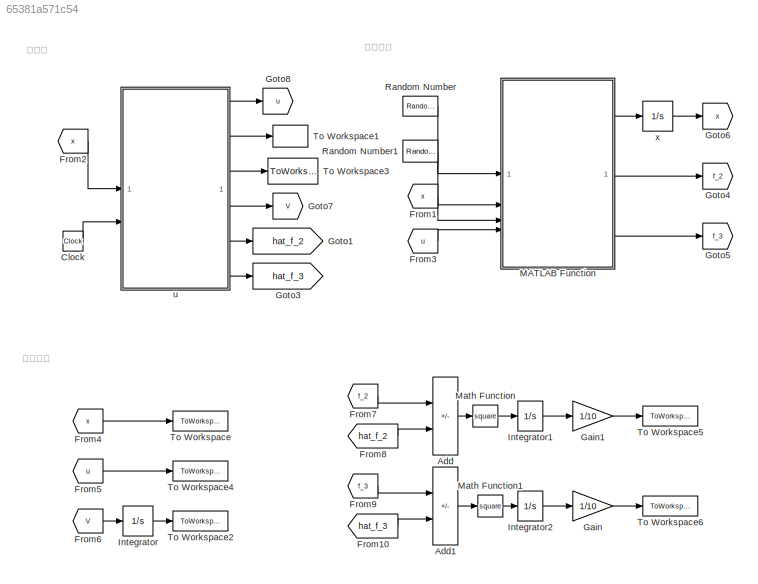
MODEL slx_65381a571c54
KIND model
CONFIG AbsTol = auto
CONFIG EnableMultiTasking = off
CONFIG FixedStep = Step_T
CONFIG MaxStep = auto
CONFIG MinStep = auto
CONFIG RelTol = 1e-3
CONFIG SampleTimeConstraint = Unconstrained
CONFIG SolverName = FixedStepAuto
CONFIG StartTime = 0.0
CONFIG StopTime = 10
BLOCK [Sum] Add
  IconShape = rectangular
  Inputs = +-
BLOCK [Sum] Add1
  IconShape = rectangular
  Inputs = +-
BLOCK [Clock] Clock
BLOCK [From] From1
  GotoTag = x
  NameLocation = top
BLOCK [From] From10
  GotoTag = hat_f_3
  NameLocation = top
BLOCK [From] From2
  GotoTag = x
  NameLocation = top
BLOCK [From] From3
  GotoTag = u
  NameLocation = top
BLOCK [From] From4
  GotoTag = x
  NameLocation = top
BLOCK [From] From5
  GotoTag = u
  NameLocation = top
BLOCK [From] From6
  GotoTag = V
  NameLocation = top
BLOCK [From] From7
  GotoTag = f_2
  NameLocation = top
BLOCK [From] From8
  GotoTag = hat_f_2
  NameLocation = top
BLOCK [From] From9
  GotoTag = f_3
  NameLocation = top
BLOCK [Gain] Gain
  Gain = 1/10
BLOCK [Gain] Gain1
  Gain = 1/10
BLOCK [Goto] Goto1
  GotoTag = hat_f_2
BLOCK [Goto] Goto3
  GotoTag = hat_f_3
BLOCK [Goto] Goto4
  GotoTag = f_2
BLOCK [Goto] Goto5
  GotoTag = f_3
BLOCK [Goto] Goto6
  GotoTag = x
BLOCK [Goto] Goto7
  GotoTag = V
BLOCK [Goto] Goto8
  GotoTag = u
BLOCK [Integrator] Integrator
BLOCK [Integrator] Integrator1
BLOCK [Integrator] Integrator2
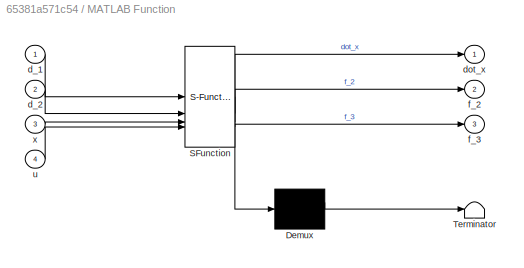
BLOCK [SubSystem] MATLAB Function
  ErrorFcn = Stateflow.Translate.translate
  PermitHierarchicalResolution = ExplicitOnly
  SFBlockType = MATLAB Function
  TreatAsAtomicUnit = on
BLOCK [Demux] MATLAB Function/ Demux 
  Outputs = 1
BLOCK [S-Function] MATLAB Function/ SFunction 
  EnableBusSupport = on
  FunctionName = sf_sfun
  Parameters = pam
  PortCounts = [4 4]
  SFcnIsStateOwnerBlock = off
  SFunctionDeploymentMode = off
  Tag = Stateflow S-Function 2
BLOCK [Terminator] MATLAB Function/ Terminator 
BLOCK [Inport] MATLAB Function/d_1
BLOCK [Inport] MATLAB Function/d_2
  Port = 2
BLOCK [Outport] MATLAB Function/dot_x
BLOCK [Outport] MATLAB Function/f_2
  Port = 2
BLOCK [Outport] MATLAB Function/f_3
  Port = 3
BLOCK [Inport] MATLAB Function/u
  Port = 4
BLOCK [Inport] MATLAB Function/x
  Port = 3
BLOCK [Math] Math Function
  Operator = square
BLOCK [Math] Math Function1
  Operator = square
BLOCK [RandomNumber] Random Number
  SampleTime = Step_T
  Seed = -1
  Variance = pam.d*pam.d
BLOCK [RandomNumber] Random Number1
  SampleTime = Step_T
  Seed = 1
  Variance = pam.d*pam.d
BLOCK [ToWorkspace] To Workspace
  FixptAsFi = on
  MaxDataPoints = inf
  SampleTime = -1
  SaveFormat = Timeseries
  VariableName = x
BLOCK [ToWorkspace] To Workspace1
  FixptAsFi = on
  MaxDataPoints = inf
  SampleTime = -1
  SaveFormat = Timeseries
  VariableName = e
BLOCK [ToWorkspace] To Workspace2
  FixptAsFi = on
  MaxDataPoints = inf
  SampleTime = -1
  SaveFormat = Timeseries
  VariableName = IAC
BLOCK [ToWorkspace] To Workspace3
  FixptAsFi = on
  MaxDataPoints = inf
  SampleTime = -1
  SaveFormat = Timeseries
  VariableName = y_d
BLOCK [ToWorkspace] To Workspace4
  FixptAsFi = on
  MaxDataPoints = inf
  SampleTime = -1
  SaveFormat = Timeseries
  VariableName = u
BLOCK [ToWorkspace] To Workspace5
  FixptAsFi = on
  MaxDataPoints = inf
  SampleTime = -1
  SaveFormat = Timeseries
  VariableName = error_2
BLOCK [ToWorkspace] To Workspace6
  FixptAsFi = on
  MaxDataPoints = inf
  SampleTime = -1
  SaveFormat = Timeseries
  VariableName = error_3
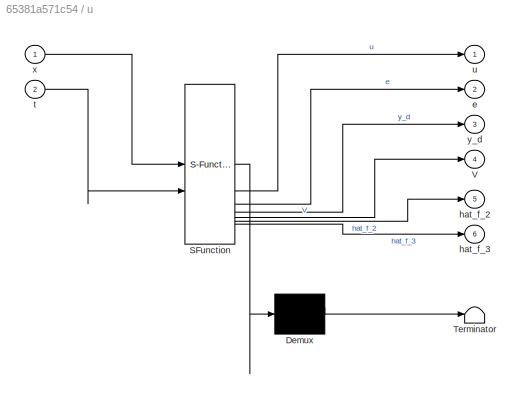
BLOCK [SubSystem] u
  ErrorFcn = Stateflow.Translate.translate
  PermitHierarchicalResolution = ExplicitOnly
  SFBlockType = MATLAB Function
  TreatAsAtomicUnit = on
BLOCK [Demux] u/ Demux 
  Outputs = 1
BLOCK [S-Function] u/ SFunction 
  EnableBusSupport = on
  FunctionName = sf_sfun
  Parameters = pam
  PortCounts = [2 7]
  SFcnIsStateOwnerBlock = off
  SFunctionDeploymentMode = off
  Tag = Stateflow S-Function 1
BLOCK [Terminator] u/ Terminator 
BLOCK [Outport] u/V
  Port = 4
BLOCK [Outport] u/e
  Port = 2
BLOCK [Outport] u/hat_f_2
  Port = 5
BLOCK [Outport] u/hat_f_3
  Port = 6
BLOCK [Inport] u/t
  Port = 2
BLOCK [Outport] u/u
BLOCK [Inport] u/x
BLOCK [Outport] u/y_d
  Port = 3
BLOCK [Integrator] x
  InitialCondition = [x_1_0;x_2_0;x_3_0]
ANNOTATION (root): 控制器
ANNOTATION (root): 画图数据
ANNOTATION (root): 系统模型
LINE Add1:1 -> Math Function1:1
LINE Add:1 -> Math Function:1
LINE Clock:1 -> u:2
LINE From10:1 -> Add1:2
LINE From1:1 -> MATLAB Function:3
LINE From2:1 -> u:1
LINE From3:1 -> MATLAB Function:4
LINE From4:1 -> To Workspace:1
LINE From5:1 -> To Workspace4:1
LINE From6:1 -> Integrator:1
LINE From7:1 -> Add:1
LINE From8:1 -> Add:2
LINE From9:1 -> Add1:1
LINE Gain1:1 -> To Workspace5:1
LINE Gain:1 -> To Workspace6:1
LINE Integrator1:1 -> Gain1:1
LINE Integrator2:1 -> Gain:1
LINE Integrator:1 -> To Workspace2:1
LINE MATLAB Function:1 -> x:1
LINE MATLAB Function:2 -> Goto4:1
LINE MATLAB Function:3 -> Goto5:1
LINE Math Function1:1 -> Integrator2:1
LINE Math Function:1 -> Integrator1:1
LINE Random Number1:1 -> MATLAB Function:2
LINE Random Number:1 -> MATLAB Function:1
LINE u:1 -> Goto8:1
LINE u:2 -> To Workspace1:1
LINE u:3 -> To Workspace3:1
LINE u:4 -> Goto7:1
LINE u:5 -> Goto1:1
LINE u:6 -> Goto3:1
LINE x:1 -> Goto6:1
CHART u states=1 transitions=1
  STATE_LABEL 'eML_blk_kernel()'
  STATE_LABEL "SCRIPT:\nfunction [u,e,y_d,V,hat_f_2,hat_f_3]  = fcn(x,t,pam)\n\ny_d = sin(t);\ndot_y_d = cos(t);\nddot_y_d = -sin(t);\ndddot_y_d = -cos(t);\n\nx_1 = x(1);\nx_2 = x(2);\nx_3 = x(3);\n\nz_2 = [sin(x_1);x_2];\nz_3 = [x_2;x_3];\n\ndot_x_1 = x_2;\ndot_x_2 = x_3+pam.hat_theta_2'*z_2;\n\n\npdot_alpha_2_x_1 = pam.hat_theta_2'*[cos(x_1);0]; \npdot_alpha_2_x_2 = pam.hat_theta_2'*[0;1];\n\npdot_alpha_2_e_1 = -pam.lambda_1;\n\n%% 第...<+939ch>"
CHART MATLAB Function states=1 transitions=1
  STATE_LABEL 'eML_blk_kernel()'
  STATE_LABEL 'SCRIPT:\nfunction [dot_x,f_2,f_3]  = fcn(d_1,d_2,x,u,pam)\n\nx_1 = x(1);\nx_2 = x(2);\nx_3 = x(3);\n\ndot_x_1 = x_2;\ndot_x_2 = x_3+pam.M/pam.D*sin(x_1)-pam.B/pam.D*x_2+d_1;\ndot_x_3 = u+pam.K_m/pam.L*x_2-pam.J/pam.L*x_3+d_2;\n\ndot_x = [dot_x_1;dot_x_2;dot_x_3];\n\nf_2 = pam.M/pam.D*sin(x_1)-pam.B/pam.D*x_2;\nf_3 = pam.K_m/pam.L*x_2-pam.J/pam.L*x_3;'
CHART  states=0 transitions=0
CHART  states=0 transitions=0
